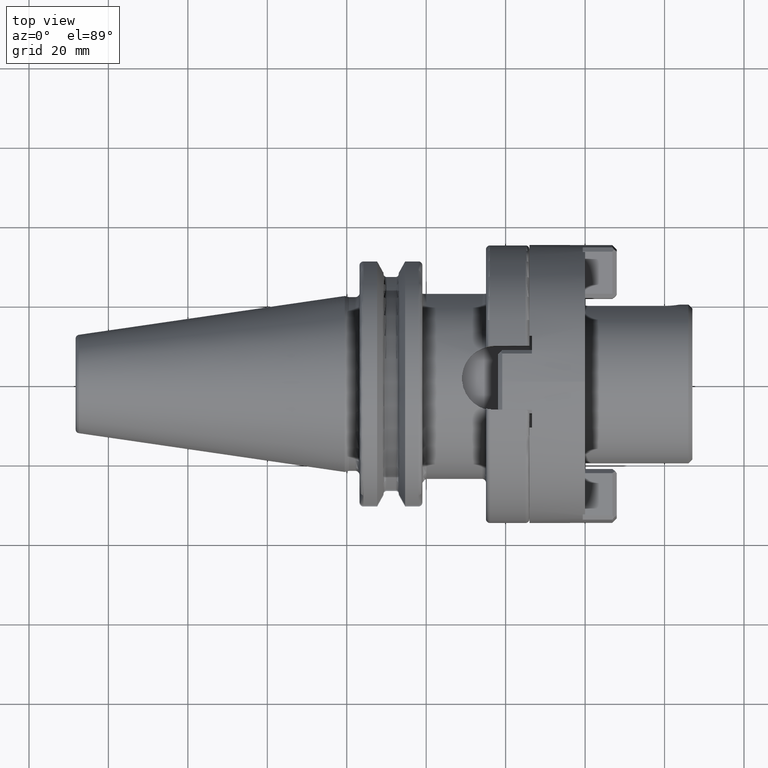
[diagram: clean part render]
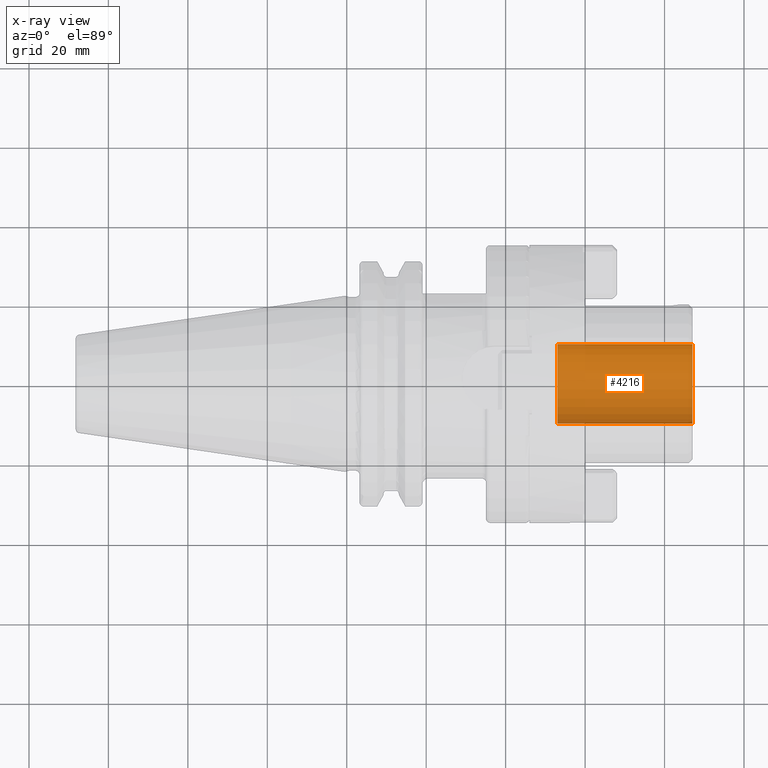
[diagram: x-ray — body ghosted, one internal face saturated and labeled with its STEP entity id]
A machine part, top view, then the same camera in x-ray: the body is ghosted and one INTERNAL B-rep face — a face not visible from any outside direction — is saturated and labeled: STEP entity #4216.
In plain terms, the highlighted cylindrical surface (partial cylindrical patch) has radius 10 mm, axis along (1, 0, 0).
Its self-contained STEP definition (entity closure, byte-faithful):
#4151=CARTESIAN_POINT('',(8.7E1,0.E0,0.E0));
#4152=DIRECTION('',(-1.E0,0.E0,0.E0));
#4153=DIRECTION('',(0.E0,1.E0,0.E0));
#4154=AXIS2_PLACEMENT_3D('',#4151,#4152,#4153);
#4161=DIRECTION('',(-1.E0,0.E0,0.E0));
#4162=VECTOR('',#4161,3.4E1);
#4163=CARTESIAN_POINT('',(8.7E1,1.E1,0.E0));
#4164=LINE('',#4163,#4162);
#4165=DIRECTION('',(-1.E0,0.E0,0.E0));
#4166=VECTOR('',#4165,3.4E1);
#4167=CARTESIAN_POINT('',(8.7E1,-1.E1,0.E0));
#4168=LINE('',#4167,#4166);
#4169=CARTESIAN_POINT('',(5.3E1,0.E0,0.E0));
#4170=DIRECTION('',(1.E0,0.E0,0.E0));
#4171=DIRECTION('',(0.E0,-1.E0,0.E0));
#4172=AXIS2_PLACEMENT_3D('',#4169,#4170,#4171);
#4189=CARTESIAN_POINT('',(5.3E1,-1.E1,0.E0));
#4190=CARTESIAN_POINT('',(5.3E1,1.E1,0.E0));
#4191=VERTEX_POINT('',#4189);
#4192=VERTEX_POINT('',#4190);
#4193=CARTESIAN_POINT('',(8.7E1,-1.E1,0.E0));
#4194=CARTESIAN_POINT('',(8.7E1,1.E1,0.E0));
#4195=VERTEX_POINT('',#4193);
#4196=VERTEX_POINT('',#4194);
#4201=CARTESIAN_POINT('',(3.422959306268E1,0.E0,0.E0));
#4202=DIRECTION('',(1.E0,0.E0,0.E0));
#4203=DIRECTION('',(0.E0,-1.E0,0.E0));
#4204=AXIS2_PLACEMENT_3D('',#4201,#4202,#4203);
#4205=CYLINDRICAL_SURFACE('',#4204,1.E1);
#4207=ORIENTED_EDGE('',*,*,#4206,.T.);
#4209=ORIENTED_EDGE('',*,*,#4208,.T.);
#4211=ORIENTED_EDGE('',*,*,#4210,.T.);
#4213=ORIENTED_EDGE('',*,*,#4212,.F.);
#4214=EDGE_LOOP('',(#4207,#4209,#4211,#4213));
#4215=FACE_OUTER_BOUND('',#4214,.F.);
#4216=ADVANCED_FACE('',(#4215),#4205,.F.);
#4155=CIRCLE('',#4154,1.E1);
#4173=CIRCLE('',#4172,1.E1);
#4206=EDGE_CURVE('',#4196,#4195,#4155,.T.);
#4208=EDGE_CURVE('',#4195,#4191,#4168,.T.);
#4210=EDGE_CURVE('',#4191,#4192,#4173,.T.);
#4212=EDGE_CURVE('',#4196,#4192,#4164,.T.);